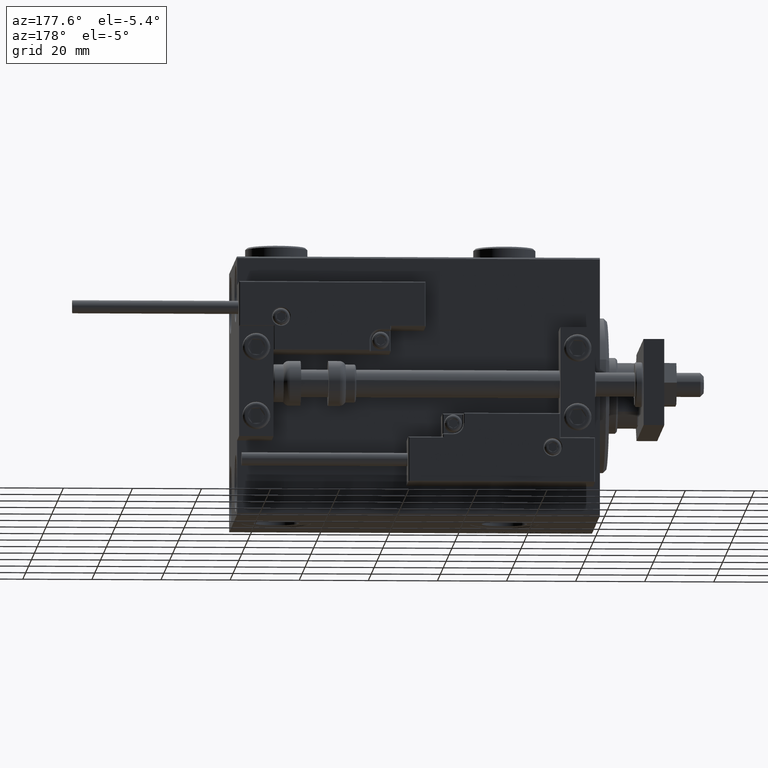
[diagram: clean part render]
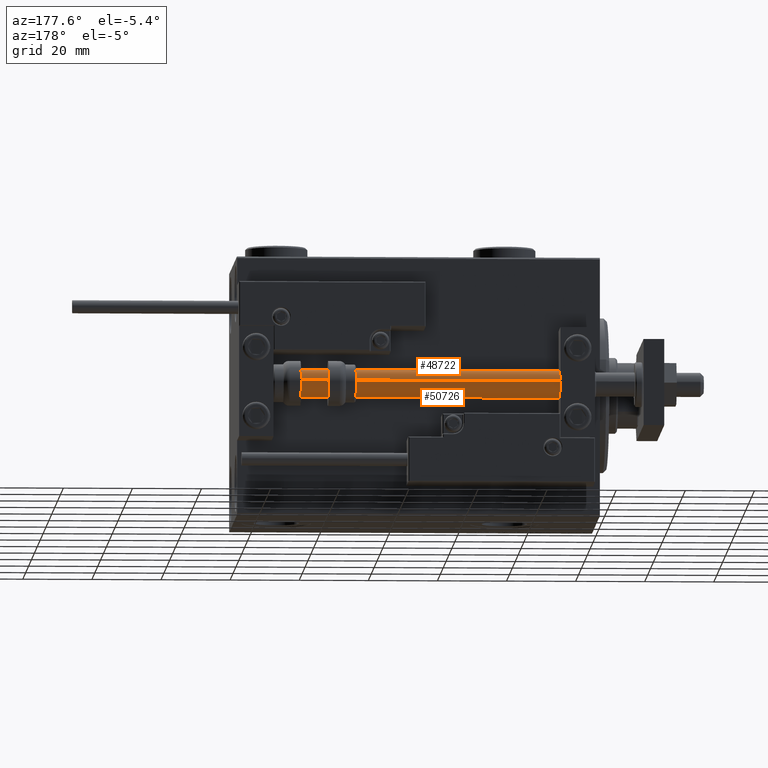
[diagram: same view with one multi-face feature highlighted, each face labeled with its STEP entity id]
A machine part, auxiliary view. The highlighted faces form ONE feature: a constant-radius fillet chain: 2 tangent blend faces with common blend radius 4 mm. The faces share edges in the B-rep.
Their STEP definitions:
[1] entity #48722 (Cylinder):
#2483 = VERTEX_POINT ( 'NONE', #14058 ) ;
#2951 = CARTESIAN_POINT ( 'NONE',  ( -4.000000000000000000, 0.000000000000000000, 105.0000000000000000 ) ) ;
#3269 = CARTESIAN_POINT ( 'NONE',  ( 4.000000000000000000, 4.898587196589412829E-16, 105.0000000000000000 ) ) ;
#3991 = CIRCLE ( 'NONE', #18975, 4.000000000000000000 ) ;
#6135 = LINE ( 'NONE', #37957, #40656 ) ;
#7934 = CARTESIAN_POINT ( 'NONE',  ( 4.000000000000000000, 4.898587196589412829E-16, 2.000000000000029310 ) ) ;
#10014 = VERTEX_POINT ( 'NONE', #3269 ) ;
#10038 = DIRECTION ( 'NONE',  ( 0.000000000000000000, 0.000000000000000000, 1.000000000000000000 ) ) ;
#13931 = VECTOR ( 'NONE', #15028, 1000.000000000000000 ) ;
#14058 = CARTESIAN_POINT ( 'NONE',  ( -4.000000000000000000, 0.000000000000000000, 2.000000000000029310 ) ) ;
#14730 = DIRECTION ( 'NONE',  ( 1.000000000000000000, 0.000000000000000000, 0.000000000000000000 ) ) ;
#15028 = DIRECTION ( 'NONE',  ( -0.000000000000000000, -0.000000000000000000, -1.000000000000000000 ) ) ;
#18633 = CARTESIAN_POINT ( 'NONE',  ( 0.000000000000000000, 0.000000000000000000, 105.0000000000000000 ) ) ;
#18975 = AXIS2_PLACEMENT_3D ( 'NONE', #26226, #43137, #14730 ) ;
#19183 = ORIENTED_EDGE ( 'NONE', *, *, #35427, .F. ) ;
#20762 = EDGE_LOOP ( 'NONE', ( #19183, #29213, #39383, #36864 ) ) ;
#20990 = VERTEX_POINT ( 'NONE', #2951 ) ;
#26226 = CARTESIAN_POINT ( 'NONE',  ( 0.000000000000000000, 0.000000000000000000, 2.000000000000029310 ) ) ;
#28104 = CYLINDRICAL_SURFACE ( 'NONE', #44181, 4.000000000000000000 ) ;
#29213 = ORIENTED_EDGE ( 'NONE', *, *, #40478, .T. ) ;
#30138 = DIRECTION ( 'NONE',  ( 1.000000000000000000, 0.000000000000000000, 0.000000000000000000 ) ) ;
#32271 = CARTESIAN_POINT ( 'NONE',  ( 0.000000000000000000, 0.000000000000000000, 105.0000000000000000 ) ) ;
#34861 = LINE ( 'NONE', #50722, #13931 ) ;
#35427 = EDGE_CURVE ( 'NONE', #10014, #20990, #49641, .T. ) ;
#36864 = ORIENTED_EDGE ( 'NONE', *, *, #42906, .F. ) ;
#37203 = FACE_OUTER_BOUND ( 'NONE', #20762, .T. ) ;
#37957 = CARTESIAN_POINT ( 'NONE',  ( -4.000000000000000000, 0.000000000000000000, 105.0000000000000000 ) ) ;
#39383 = ORIENTED_EDGE ( 'NONE', *, *, #43038, .T. ) ;
#40478 = EDGE_CURVE ( 'NONE', #10014, #47342, #34861, .T. ) ;
#40656 = VECTOR ( 'NONE', #48892, 1000.000000000000000 ) ;
#42906 = EDGE_CURVE ( 'NONE', #20990, #2483, #6135, .T. ) ;
#42992 = AXIS2_PLACEMENT_3D ( 'NONE', #18633, #10038, #30138 ) ;
#43038 = EDGE_CURVE ( 'NONE', #47342, #2483, #3991, .T. ) ;
#43137 = DIRECTION ( 'NONE',  ( -0.000000000000000000, -0.000000000000000000, 1.000000000000000000 ) ) ;
#44181 = AXIS2_PLACEMENT_3D ( 'NONE', #32271, #48406, #48155 ) ;
#47342 = VERTEX_POINT ( 'NONE', #7934 ) ;
#48155 = DIRECTION ( 'NONE',  ( -1.000000000000000000, 0.000000000000000000, 0.000000000000000000 ) ) ;
#48406 = DIRECTION ( 'NONE',  ( -0.000000000000000000, -0.000000000000000000, -1.000000000000000000 ) ) ;
#48722 = ADVANCED_FACE ( 'NONE', ( #37203 ), #28104, .T. ) ;
#48892 = DIRECTION ( 'NONE',  ( -0.000000000000000000, -0.000000000000000000, -1.000000000000000000 ) ) ;
#49641 = CIRCLE ( 'NONE', #42992, 4.000000000000000000 ) ;
#50722 = CARTESIAN_POINT ( 'NONE',  ( 4.000000000000000000, 4.898587196589412829E-16, 105.0000000000000000 ) ) ;
[2] entity #50726 (Cylinder):
#2483 = VERTEX_POINT ( 'NONE', #14058 ) ;
#2951 = CARTESIAN_POINT ( 'NONE',  ( -4.000000000000000000, 0.000000000000000000, 105.0000000000000000 ) ) ;
#3269 = CARTESIAN_POINT ( 'NONE',  ( 4.000000000000000000, 4.898587196589412829E-16, 105.0000000000000000 ) ) ;
#3920 = DIRECTION ( 'NONE',  ( 1.000000000000000000, 0.000000000000000000, 0.000000000000000000 ) ) ;
#5044 = EDGE_LOOP ( 'NONE', ( #44602, #47846, #38884, #41456 ) ) ;
#6135 = LINE ( 'NONE', #37957, #40656 ) ;
#6977 = CIRCLE ( 'NONE', #12819, 4.000000000000000000 ) ;
#7934 = CARTESIAN_POINT ( 'NONE',  ( 4.000000000000000000, 4.898587196589412829E-16, 2.000000000000029310 ) ) ;
#10014 = VERTEX_POINT ( 'NONE', #3269 ) ;
#12819 = AXIS2_PLACEMENT_3D ( 'NONE', #35475, #15379, #3920 ) ;
#12955 = FACE_OUTER_BOUND ( 'NONE', #5044, .T. ) ;
#13073 = AXIS2_PLACEMENT_3D ( 'NONE', #15921, #43820, #31854 ) ;
#13931 = VECTOR ( 'NONE', #15028, 1000.000000000000000 ) ;
#14058 = CARTESIAN_POINT ( 'NONE',  ( -4.000000000000000000, 0.000000000000000000, 2.000000000000029310 ) ) ;
#15028 = DIRECTION ( 'NONE',  ( -0.000000000000000000, -0.000000000000000000, -1.000000000000000000 ) ) ;
#15116 = DIRECTION ( 'NONE',  ( -1.000000000000000000, 0.000000000000000000, 0.000000000000000000 ) ) ;
#15379 = DIRECTION ( 'NONE',  ( 0.000000000000000000, 0.000000000000000000, 1.000000000000000000 ) ) ;
#15921 = CARTESIAN_POINT ( 'NONE',  ( 0.000000000000000000, 0.000000000000000000, 2.000000000000029310 ) ) ;
#16602 = CYLINDRICAL_SURFACE ( 'NONE', #25024, 4.000000000000000000 ) ;
#20990 = VERTEX_POINT ( 'NONE', #2951 ) ;
#23210 = DIRECTION ( 'NONE',  ( -0.000000000000000000, -0.000000000000000000, -1.000000000000000000 ) ) ;
#25024 = AXIS2_PLACEMENT_3D ( 'NONE', #46922, #23210, #15116 ) ;
#29530 = EDGE_CURVE ( 'NONE', #20990, #10014, #6977, .T. ) ;
#31854 = DIRECTION ( 'NONE',  ( 1.000000000000000000, 0.000000000000000000, 0.000000000000000000 ) ) ;
#34861 = LINE ( 'NONE', #50722, #13931 ) ;
#35475 = CARTESIAN_POINT ( 'NONE',  ( 0.000000000000000000, 0.000000000000000000, 105.0000000000000000 ) ) ;
#35555 = CIRCLE ( 'NONE', #13073, 4.000000000000000000 ) ;
#37957 = CARTESIAN_POINT ( 'NONE',  ( -4.000000000000000000, 0.000000000000000000, 105.0000000000000000 ) ) ;
#38884 = ORIENTED_EDGE ( 'NONE', *, *, #42906, .T. ) ;
#40478 = EDGE_CURVE ( 'NONE', #10014, #47342, #34861, .T. ) ;
#40656 = VECTOR ( 'NONE', #48892, 1000.000000000000000 ) ;
#40980 = EDGE_CURVE ( 'NONE', #2483, #47342, #35555, .T. ) ;
#41456 = ORIENTED_EDGE ( 'NONE', *, *, #40980, .T. ) ;
#42906 = EDGE_CURVE ( 'NONE', #20990, #2483, #6135, .T. ) ;
#43820 = DIRECTION ( 'NONE',  ( -0.000000000000000000, -0.000000000000000000, 1.000000000000000000 ) ) ;
#44602 = ORIENTED_EDGE ( 'NONE', *, *, #40478, .F. ) ;
#46922 = CARTESIAN_POINT ( 'NONE',  ( 0.000000000000000000, 0.000000000000000000, 105.0000000000000000 ) ) ;
#47342 = VERTEX_POINT ( 'NONE', #7934 ) ;
#47846 = ORIENTED_EDGE ( 'NONE', *, *, #29530, .F. ) ;
#48892 = DIRECTION ( 'NONE',  ( -0.000000000000000000, -0.000000000000000000, -1.000000000000000000 ) ) ;
#50722 = CARTESIAN_POINT ( 'NONE',  ( 4.000000000000000000, 4.898587196589412829E-16, 105.0000000000000000 ) ) ;
#50726 = ADVANCED_FACE ( 'NONE', ( #12955 ), #16602, .T. ) ;